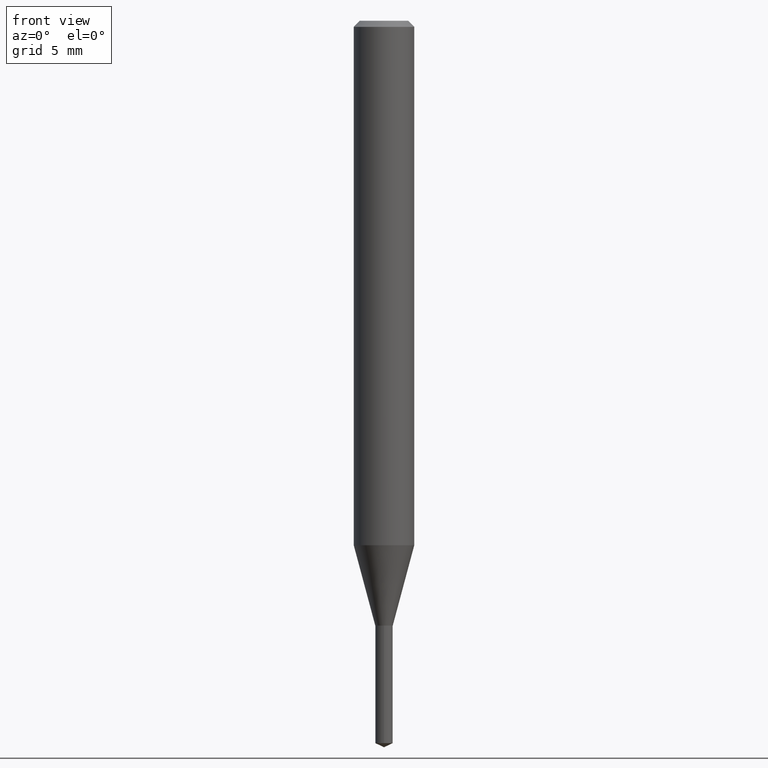
[diagram: clean part render]
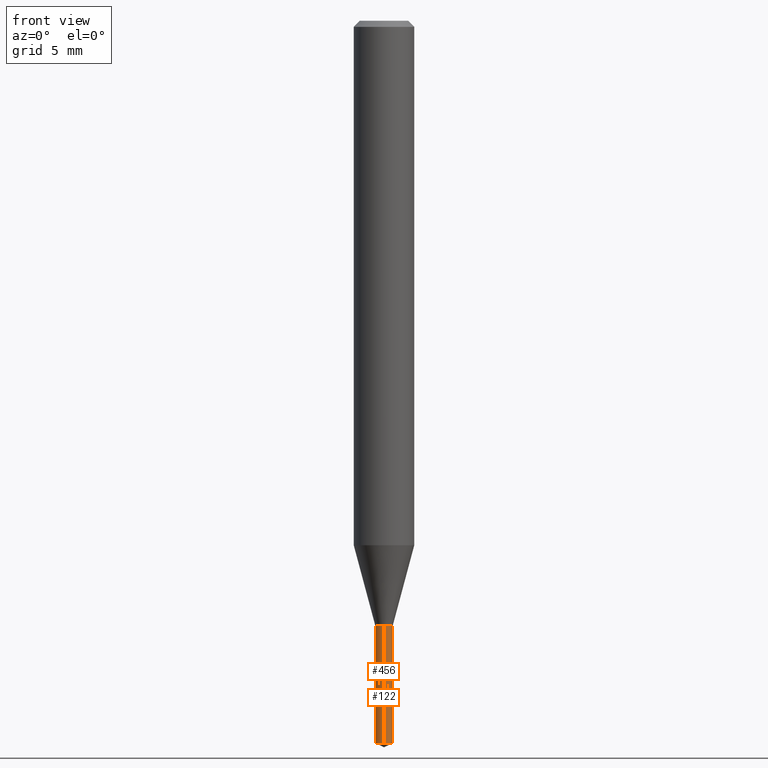
[diagram: same view with one multi-face feature highlighted, each face labeled with its STEP entity id]
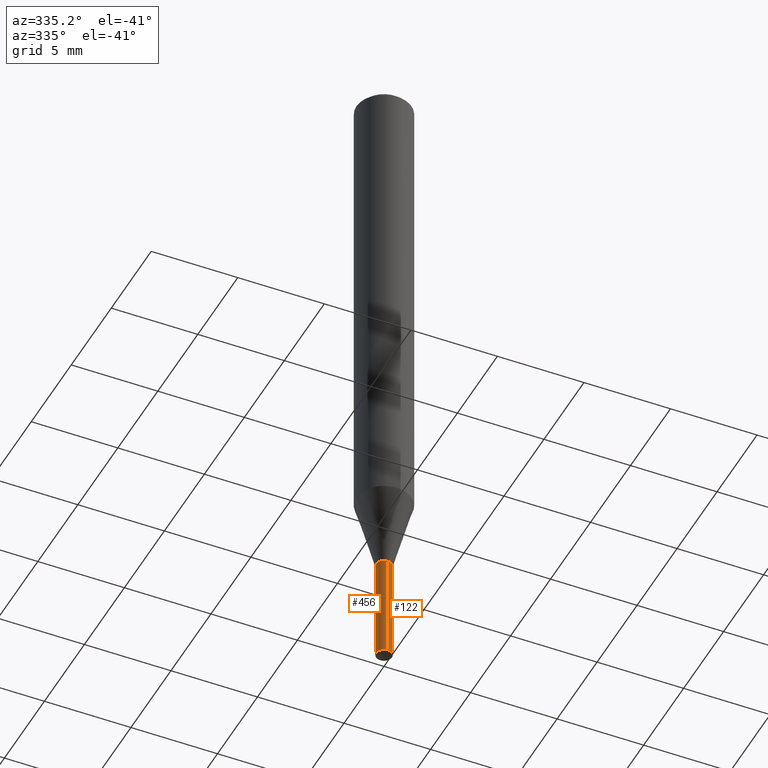
[diagram: same view with one multi-face feature highlighted, each face labeled with its STEP entity id]
A machine part, front view. The highlighted faces form ONE feature: a constant-radius fillet chain: 2 tangent blend faces with common blend radius 0.4572 mm. The faces share edges in the B-rep.
A second angle (auxiliary view) of the same feature is appended — it is thin or edge-on in the first view.
Their STEP definitions:
[1] entity #122 (Cylinder):
#19 = CYLINDRICAL_SURFACE ( 'NONE', #328, 0.01799999999999999864 ) ;
#30 = LINE ( 'NONE', #37, #368 ) ;
#37 = CARTESIAN_POINT ( 'NONE',  ( 1.278976924368449190E-16, 0.01799999999999615796, -1.100000000000000089 ) ) ;
#45 = VERTEX_POINT ( 'NONE', #228 ) ;
#66 = CIRCLE ( 'NONE', #389, 0.01800000000000000211 ) ;
#89 = CARTESIAN_POINT ( 'NONE',  ( 2.690015686803650369E-29, -3.840629472727460101E-15, -1.100000000000000089 ) ) ;
#117 = ORIENTED_EDGE ( 'NONE', *, *, #250, .F. ) ;
#120 = DIRECTION ( 'NONE',  ( -2.442957897581693293E-29, 3.495077102875319228E-15, 1.000000000000000000 ) ) ;
#122 = ADVANCED_FACE ( 'NONE', ( #244 ), #19, .T. ) ;
#133 = VERTEX_POINT ( 'NONE', #385 ) ;
#137 = CARTESIAN_POINT ( 'NONE',  ( 3.646693786264862910E-29, -5.209324251937156062E-15, -1.491606462153210577 ) ) ;
#141 = DIRECTION ( 'NONE',  ( -2.442957897581693293E-29, 3.495077102875318834E-15, 1.000000000000000000 ) ) ;
#177 = CARTESIAN_POINT ( 'NONE',  ( 2.690015686803650369E-29, -3.840629472727460101E-15, -1.100000000000000089 ) ) ;
#180 = ORIENTED_EDGE ( 'NONE', *, *, #280, .F. ) ;
#181 = DIRECTION ( 'NONE',  ( -2.442957897581693293E-29, 3.495077102875319228E-15, 1.000000000000000000 ) ) ;
#200 = VERTEX_POINT ( 'NONE', #290 ) ;
#202 = VERTEX_POINT ( 'NONE', #255 ) ;
#228 = CARTESIAN_POINT ( 'NONE',  ( 1.278976924368545333E-16, 0.01799999999999615796, -1.100000000000000089 ) ) ;
#243 = EDGE_LOOP ( 'NONE', ( #355, #277, #117, #180 ) ) ;
#244 = FACE_OUTER_BOUND ( 'NONE', #243, .T. ) ;
#249 = DIRECTION ( 'NONE',  ( -6.982962677686265133E-15, -1.000000000000000000, 0.000000000000000000 ) ) ;
#250 = EDGE_CURVE ( 'NONE', #133, #45, #430, .T. ) ;
#255 = CARTESIAN_POINT ( 'NONE',  ( -1.256933281983163574E-16, -0.01800000000000521669, -1.491606462153210577 ) ) ;
#258 = CARTESIAN_POINT ( 'NONE',  ( -1.256933281983258730E-16, -0.01800000000000383932, -1.100000000000000089 ) ) ;
#262 = DIRECTION ( 'NONE',  ( -6.982962677686265133E-15, -1.000000000000000000, 0.000000000000000000 ) ) ;
#277 = ORIENTED_EDGE ( 'NONE', *, *, #417, .T. ) ;
#280 = EDGE_CURVE ( 'NONE', #202, #133, #438, .T. ) ;
#290 = CARTESIAN_POINT ( 'NONE',  ( 1.278976924368545333E-16, 0.01799999999999479447, -1.491606462153210577 ) ) ;
#322 = EDGE_CURVE ( 'NONE', #202, #200, #66, .T. ) ;
#323 = AXIS2_PLACEMENT_3D ( 'NONE', #177, #141, #366 ) ;
#328 = AXIS2_PLACEMENT_3D ( 'NONE', #89, #429, #249 ) ;
#332 = DIRECTION ( 'NONE',  ( -2.442957897581693293E-29, 3.495077102875318834E-15, 1.000000000000000000 ) ) ;
#352 = VECTOR ( 'NONE', #181, 39.37007874015748143 ) ;
#355 = ORIENTED_EDGE ( 'NONE', *, *, #322, .T. ) ;
#366 = DIRECTION ( 'NONE',  ( -6.982962677686265133E-15, -1.000000000000000000, 0.000000000000000000 ) ) ;
#368 = VECTOR ( 'NONE', #120, 39.37007874015748143 ) ;
#385 = CARTESIAN_POINT ( 'NONE',  ( -1.256933281983258730E-16, -0.01800000000000383932, -1.100000000000000089 ) ) ;
#389 = AXIS2_PLACEMENT_3D ( 'NONE', #137, #332, #262 ) ;
#417 = EDGE_CURVE ( 'NONE', #200, #45, #30, .T. ) ;
#429 = DIRECTION ( 'NONE',  ( -2.442957897581693293E-29, 3.495077102875318834E-15, 1.000000000000000000 ) ) ;
#430 = CIRCLE ( 'NONE', #323, 0.01799999999999999864 ) ;
#438 = LINE ( 'NONE', #258, #352 ) ;
[2] entity #456 (Cylinder):
#1 = ORIENTED_EDGE ( 'NONE', *, *, #238, .F. ) ;
#30 = LINE ( 'NONE', #37, #368 ) ;
#37 = CARTESIAN_POINT ( 'NONE',  ( 1.278976924368449190E-16, 0.01799999999999615796, -1.100000000000000089 ) ) ;
#45 = VERTEX_POINT ( 'NONE', #228 ) ;
#50 = AXIS2_PLACEMENT_3D ( 'NONE', #391, #354, #217 ) ;
#52 = ORIENTED_EDGE ( 'NONE', *, *, #125, .T. ) ;
#69 = ORIENTED_EDGE ( 'NONE', *, *, #280, .T. ) ;
#100 = ORIENTED_EDGE ( 'NONE', *, *, #417, .F. ) ;
#120 = DIRECTION ( 'NONE',  ( -2.442957897581693293E-29, 3.495077102875319228E-15, 1.000000000000000000 ) ) ;
#125 = EDGE_CURVE ( 'NONE', #200, #202, #272, .T. ) ;
#133 = VERTEX_POINT ( 'NONE', #385 ) ;
#146 = CIRCLE ( 'NONE', #203, 0.01799999999999999864 ) ;
#163 = DIRECTION ( 'NONE',  ( -6.982962677686265133E-15, -1.000000000000000000, 0.000000000000000000 ) ) ;
#181 = DIRECTION ( 'NONE',  ( -2.442957897581693293E-29, 3.495077102875319228E-15, 1.000000000000000000 ) ) ;
#200 = VERTEX_POINT ( 'NONE', #290 ) ;
#202 = VERTEX_POINT ( 'NONE', #255 ) ;
#203 = AXIS2_PLACEMENT_3D ( 'NONE', #361, #256, #225 ) ;
#217 = DIRECTION ( 'NONE',  ( -6.982962677686265133E-15, -1.000000000000000000, 0.000000000000000000 ) ) ;
#225 = DIRECTION ( 'NONE',  ( -6.982962677686265133E-15, -1.000000000000000000, 0.000000000000000000 ) ) ;
#228 = CARTESIAN_POINT ( 'NONE',  ( 1.278976924368545333E-16, 0.01799999999999615796, -1.100000000000000089 ) ) ;
#238 = EDGE_CURVE ( 'NONE', #45, #133, #146, .T. ) ;
#255 = CARTESIAN_POINT ( 'NONE',  ( -1.256933281983163574E-16, -0.01800000000000521669, -1.491606462153210577 ) ) ;
#256 = DIRECTION ( 'NONE',  ( -2.442957897581693293E-29, 3.495077102875318834E-15, 1.000000000000000000 ) ) ;
#258 = CARTESIAN_POINT ( 'NONE',  ( -1.256933281983258730E-16, -0.01800000000000383932, -1.100000000000000089 ) ) ;
#272 = CIRCLE ( 'NONE', #50, 0.01800000000000000211 ) ;
#280 = EDGE_CURVE ( 'NONE', #202, #133, #438, .T. ) ;
#290 = CARTESIAN_POINT ( 'NONE',  ( 1.278976924368545333E-16, 0.01799999999999479447, -1.491606462153210577 ) ) ;
#339 = FACE_OUTER_BOUND ( 'NONE', #399, .T. ) ;
#342 = DIRECTION ( 'NONE',  ( -2.442957897581693293E-29, 3.495077102875318834E-15, 1.000000000000000000 ) ) ;
#352 = VECTOR ( 'NONE', #181, 39.37007874015748143 ) ;
#354 = DIRECTION ( 'NONE',  ( -2.442957897581693293E-29, 3.495077102875318834E-15, 1.000000000000000000 ) ) ;
#361 = CARTESIAN_POINT ( 'NONE',  ( 2.690015686803650369E-29, -3.840629472727460101E-15, -1.100000000000000089 ) ) ;
#368 = VECTOR ( 'NONE', #120, 39.37007874015748143 ) ;
#385 = CARTESIAN_POINT ( 'NONE',  ( -1.256933281983258730E-16, -0.01800000000000383932, -1.100000000000000089 ) ) ;
#391 = CARTESIAN_POINT ( 'NONE',  ( 3.646693786264862910E-29, -5.209324251937156062E-15, -1.491606462153210577 ) ) ;
#398 = AXIS2_PLACEMENT_3D ( 'NONE', #418, #342, #163 ) ;
#399 = EDGE_LOOP ( 'NONE', ( #100, #52, #69, #1 ) ) ;
#412 = CYLINDRICAL_SURFACE ( 'NONE', #398, 0.01799999999999999864 ) ;
#417 = EDGE_CURVE ( 'NONE', #200, #45, #30, .T. ) ;
#418 = CARTESIAN_POINT ( 'NONE',  ( 2.690015686803650369E-29, -3.840629472727460101E-15, -1.100000000000000089 ) ) ;
#438 = LINE ( 'NONE', #258, #352 ) ;
#456 = ADVANCED_FACE ( 'NONE', ( #339 ), #412, .T. ) ;